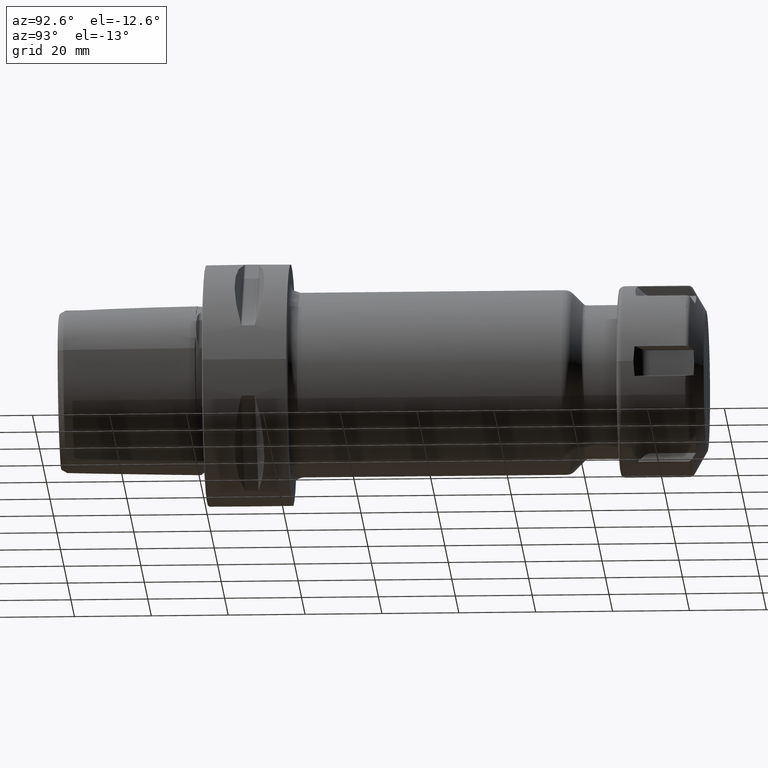
[diagram: clean part render]
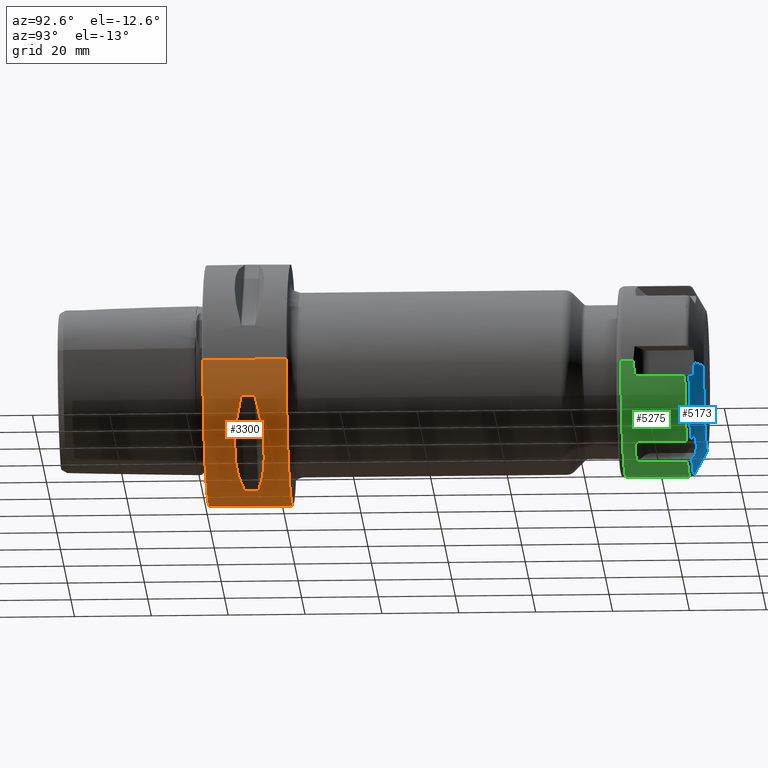
[diagram: same view with three faces highlighted in distinct colors, each labeled with its STEP entity id]
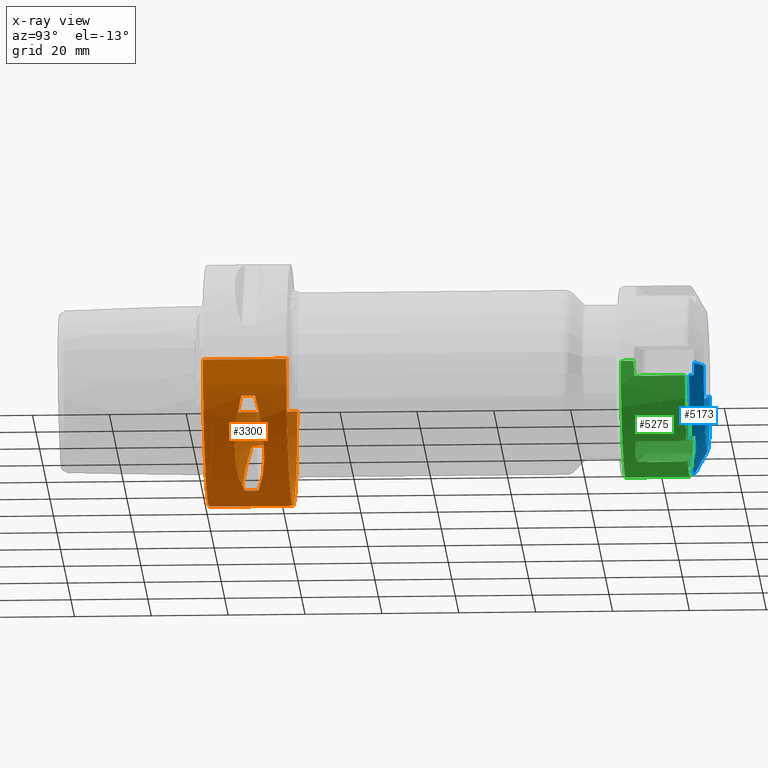
[diagram: x-ray of the same camera — body ghosted, the three highlighted faces saturated]
A machine part, auxiliary view with three faces highlighted in distinct colors.
The next image is the same camera in x-ray (body ghosted, the three faces saturated) — at least one of them is partly hidden behind the body in this view.
Their STEP definitions:

[orange] entity #3300 — the highlighted cylindrical surface (partial cylindrical patch) has radius 31.5 mm, axis along (0, -1, 0).
#1205=DIRECTION('',(0.E0,-1.E0,0.E0));
#1206=VECTOR('',#1205,2.922649730810E0);
#1207=CARTESIAN_POINT('',(-3.008059276032E1,1.346132486541E1,
-9.349221314525E0));
#1208=LINE('',#1207,#1206);
#1209=CARTESIAN_POINT('',(-2.991395484647E1,1.389433756730E1,
-9.869412618966E0));
#1210=CARTESIAN_POINT('',(-2.908518363459E1,1.458150705601E1,
-1.238139844501E1));
#1211=CARTESIAN_POINT('',(-2.691325004580E1,1.553584740593E1,
-1.689097893205E1));
#1212=CARTESIAN_POINT('',(-2.245973816660E1,1.599114523220E1,
-2.245973816660E1));
#1213=CARTESIAN_POINT('',(-1.689097893205E1,1.553584740593E1,
-2.691325004580E1));
#1214=CARTESIAN_POINT('',(-1.238139844501E1,1.458150705601E1,
-2.908518363459E1));
#1215=CARTESIAN_POINT('',(-9.869412618966E0,1.389433756730E1,
-2.991395484647E1));
#1217=DIRECTION('',(0.E0,-1.E0,0.E0));
#1218=VECTOR('',#1217,2.922649730810E0);
#1219=CARTESIAN_POINT('',(-9.349221314525E0,1.346132486541E1,
-3.008059276032E1));
#1220=LINE('',#1219,#1218);
#1221=CARTESIAN_POINT('',(-2.991395484647E1,1.010566243270E1,
-9.869412618966E0));
#1222=CARTESIAN_POINT('',(-2.908518363459E1,9.418492943988E0,
-1.238139844501E1));
#1223=CARTESIAN_POINT('',(-2.691325004580E1,8.464152594070E0,
-1.689097893205E1));
#1224=CARTESIAN_POINT('',(-2.245973816660E1,8.008854767798E0,
-2.245973816660E1));
#1225=CARTESIAN_POINT('',(-1.689097893205E1,8.464152594070E0,
-2.691325004580E1));
#1226=CARTESIAN_POINT('',(-1.238139844501E1,9.418492943988E0,
-2.908518363459E1));
#1227=CARTESIAN_POINT('',(-9.869412618966E0,1.010566243270E1,
-2.991395484647E1));
#1229=CARTESIAN_POINT('',(9.869412618966E0,1.389433756730E1,-2.991395484647E1));
#1230=CARTESIAN_POINT('',(1.238139844501E1,1.458150705601E1,-2.908518363459E1));
#1231=CARTESIAN_POINT('',(1.689097893205E1,1.553584740593E1,-2.691325004580E1));
#1232=CARTESIAN_POINT('',(2.245973816660E1,1.599114523220E1,-2.245973816660E1));
#1233=CARTESIAN_POINT('',(2.691325004580E1,1.553584740593E1,-1.689097893205E1));
#1234=CARTESIAN_POINT('',(2.908518363459E1,1.458150705601E1,-1.238139844501E1));
#1235=CARTESIAN_POINT('',(2.991395484647E1,1.389433756730E1,-9.869412618966E0));
#1237=DIRECTION('',(0.E0,-1.E0,0.E0));
#1238=VECTOR('',#1237,2.922649730810E0);
#1239=CARTESIAN_POINT('',(3.008059276032E1,1.346132486541E1,-9.349221314525E0));
#1240=LINE('',#1239,#1238);
#1241=CARTESIAN_POINT('',(2.991395484647E1,1.010566243270E1,-9.869412618966E0));
#1242=CARTESIAN_POINT('',(2.908518363459E1,9.418492943988E0,-1.238139844501E1));
#1243=CARTESIAN_POINT('',(2.691325004580E1,8.464152594070E0,-1.689097893205E1));
#1244=CARTESIAN_POINT('',(2.245973816660E1,8.008854767798E0,-2.245973816660E1));
#1245=CARTESIAN_POINT('',(1.689097893205E1,8.464152594070E0,-2.691325004580E1));
#1246=CARTESIAN_POINT('',(1.238139844501E1,9.418492943988E0,-2.908518363459E1));
#1247=CARTESIAN_POINT('',(9.869412618966E0,1.010566243270E1,-2.991395484647E1));
#1249=DIRECTION('',(0.E0,-1.E0,0.E0));
#1250=VECTOR('',#1249,2.922649730810E0);
#1251=CARTESIAN_POINT('',(9.349221314525E0,1.346132486541E1,-3.008059276032E1));
#1252=LINE('',#1251,#1250);
#1253=CARTESIAN_POINT('',(0.E0,3.000029778999E-1,0.E0));
#1254=DIRECTION('',(0.E0,-1.E0,0.E0));
#1255=DIRECTION('',(-1.E0,0.E0,0.E0));
#1256=AXIS2_PLACEMENT_3D('',#1253,#1254,#1255);
#1258=CARTESIAN_POINT('',(0.E0,2.2E1,0.E0));
#1259=DIRECTION('',(0.E0,-1.E0,0.E0));
#1260=DIRECTION('',(-1.E0,0.E0,0.E0));
#1261=AXIS2_PLACEMENT_3D('',#1258,#1259,#1260);
#1271=CARTESIAN_POINT('',(-9.349221314525E0,1.346132486541E1,
-3.008059276032E1));
#1272=CARTESIAN_POINT('',(-9.349221314525E0,1.349504795022E1,
-3.008059276032E1));
#1273=CARTESIAN_POINT('',(-9.362833969856E0,1.356093160788E1,
-3.007636824994E1));
#1274=CARTESIAN_POINT('',(-9.423024234347E0,1.365492587026E1,
-3.005758723646E1));
#1275=CARTESIAN_POINT('',(-9.505994515085E0,1.373070359192E1,
-3.003146987333E1));
#1276=CARTESIAN_POINT('',(-9.608339142194E0,1.379587241420E1,
-2.999890758448E1));
#1277=CARTESIAN_POINT('',(-9.730187158805E0,1.385140119697E1,
-2.995963363012E1));
#1278=CARTESIAN_POINT('',(-9.821338983855E0,1.388118672269E1,
-2.992981562260E1));
#1279=CARTESIAN_POINT('',(-9.869412618966E0,1.389433756730E1,
-2.991395484647E1));
#1281=CARTESIAN_POINT('',(-2.991395484647E1,1.389433756730E1,
-9.869412618966E0));
#1282=CARTESIAN_POINT('',(-2.992980347358E1,1.388119679596E1,
-9.821375807244E0));
#1283=CARTESIAN_POINT('',(-2.995963527303E1,1.385138534746E1,
-9.730181193235E0));
#1284=CARTESIAN_POINT('',(-2.999887968792E1,1.379596091020E1,
-9.608429051546E0));
#1285=CARTESIAN_POINT('',(-3.003182263275E1,1.372995736088E1,
-9.504883008252E0));
#1286=CARTESIAN_POINT('',(-3.005789814587E1,1.365373485983E1,
-9.422030217008E0));
#1287=CARTESIAN_POINT('',(-3.007643801323E1,1.356016710741E1,
-9.362608905906E0));
#1288=CARTESIAN_POINT('',(-3.008059276032E1,1.349474624232E1,
-9.349221314525E0));
#1289=CARTESIAN_POINT('',(-3.008059276032E1,1.346132486541E1,
-9.349221314525E0));
#1295=CARTESIAN_POINT('',(-9.869412618966E0,1.010566243270E1,
-2.991395484647E1));
#1296=CARTESIAN_POINT('',(-9.821308210859E0,1.011882169546E1,
-2.992982577543E1));
#1297=CARTESIAN_POINT('',(-9.729888141623E0,1.014869745425E1,
-2.995973108805E1));
#1298=CARTESIAN_POINT('',(-9.607745799635E0,1.020442300938E1,
-2.999909899342E1));
#1299=CARTESIAN_POINT('',(-9.503246659022E0,1.027093824207E1,
-3.003234338951E1));
#1300=CARTESIAN_POINT('',(-9.417809222093E0,1.035109620257E1,
-3.005922060641E1));
#1301=CARTESIAN_POINT('',(-9.361901171300E0,1.044267116295E1,
-3.007665631953E1));
#1302=CARTESIAN_POINT('',(-9.349221314525E0,1.050643820004E1,
-3.008059276032E1));
#1303=CARTESIAN_POINT('',(-9.349221314525E0,1.053867513459E1,
-3.008059276032E1));
#1305=CARTESIAN_POINT('',(-3.008059276032E1,1.053867513459E1,
-9.349221314525E0));
#1306=CARTESIAN_POINT('',(-3.008059276032E1,1.050654578135E1,
-9.349221314525E0));
#1307=CARTESIAN_POINT('',(-3.007668038044E1,1.044299847425E1,
-9.361823603568E0));
#1308=CARTESIAN_POINT('',(-3.005938846886E1,1.035182163747E1,
-9.417271451345E0));
#1309=CARTESIAN_POINT('',(-3.003270270663E1,1.027180209197E1,
-9.502110395747E0));
#1310=CARTESIAN_POINT('',(-2.999942275227E1,1.020495249529E1,
-9.606734803034E0));
#1311=CARTESIAN_POINT('',(-2.996007806365E1,1.014909337873E1,
-9.728821222096E0));
#1312=CARTESIAN_POINT('',(-2.992996736064E1,1.011893908978E1,
-9.820879069471E0));
#1313=CARTESIAN_POINT('',(-2.991395484647E1,1.010566243270E1,
-9.869412618966E0));
#1323=CARTESIAN_POINT('',(3.008059276032E1,1.346132486541E1,-9.349221314525E0));
#1324=CARTESIAN_POINT('',(3.008059276032E1,1.349469574652E1,-9.349221314525E0));
#1325=CARTESIAN_POINT('',(3.007644946554E1,1.356004198491E1,-9.362571960523E0));
#1326=CARTESIAN_POINT('',(3.005794801612E1,1.365354543677E1,-9.421870780902E0));
#1327=CARTESIAN_POINT('',(3.003186978023E1,1.372986453349E1,-9.504734744835E0));
#1328=CARTESIAN_POINT('',(2.999885204860E1,1.379601190466E1,-9.608515690181E0));
#1329=CARTESIAN_POINT('',(2.995963612130E1,1.385137935819E1,-9.730178159226E0));
#1330=CARTESIAN_POINT('',(2.992980233681E1,1.388119773850E1,-9.821379252757E0));
#1331=CARTESIAN_POINT('',(2.991395484647E1,1.389433756730E1,-9.869412618966E0));
#1333=CARTESIAN_POINT('',(9.869412618966E0,1.389433756730E1,-2.991395484647E1));
#1334=CARTESIAN_POINT('',(9.821338983855E0,1.388118672269E1,-2.992981562260E1));
#1335=CARTESIAN_POINT('',(9.730187158805E0,1.385140119697E1,-2.995963363012E1));
#1336=CARTESIAN_POINT('',(9.608339142194E0,1.379587241420E1,-2.999890758448E1));
#1337=CARTESIAN_POINT('',(9.505994515085E0,1.373070359192E1,-3.003146987333E1));
#1338=CARTESIAN_POINT('',(9.423024234347E0,1.365492587026E1,-3.005758723646E1));
#1339=CARTESIAN_POINT('',(9.362833969856E0,1.356093160788E1,-3.007636824994E1));
#1340=CARTESIAN_POINT('',(9.349221314525E0,1.349504795022E1,-3.008059276032E1));
#1341=CARTESIAN_POINT('',(9.349221314525E0,1.346132486541E1,-3.008059276032E1));
#1351=CARTESIAN_POINT('',(2.991395484647E1,1.010566243270E1,-9.869412618966E0));
#1352=CARTESIAN_POINT('',(2.992996944167E1,1.011894081525E1,-9.820872761913E0));
#1353=CARTESIAN_POINT('',(2.996008718581E1,1.014910317937E1,-9.728793285311E0));
#1354=CARTESIAN_POINT('',(2.999944598771E1,1.020498532174E1,-9.606662609526E0));
#1355=CARTESIAN_POINT('',(3.003275283675E1,1.027191829327E1,-9.501952000490E0));
#1356=CARTESIAN_POINT('',(3.005941487736E1,1.035193638725E1,-9.417186844685E0));
#1357=CARTESIAN_POINT('',(3.007668216134E1,1.044303610977E1,-9.361817836042E0));
#1358=CARTESIAN_POINT('',(3.008059276032E1,1.050655728651E1,-9.349221314525E0));
#1359=CARTESIAN_POINT('',(3.008059276032E1,1.053867513459E1,-9.349221314525E0));
#1361=CARTESIAN_POINT('',(9.349221314525E0,1.053867513459E1,-3.008059276032E1));
#1362=CARTESIAN_POINT('',(9.349221314525E0,1.050643820004E1,-3.008059276032E1));
#1363=CARTESIAN_POINT('',(9.361901171300E0,1.044267116295E1,-3.007665631953E1));
#1364=CARTESIAN_POINT('',(9.417809222093E0,1.035109620257E1,-3.005922060641E1));
#1365=CARTESIAN_POINT('',(9.503246659022E0,1.027093824207E1,-3.003234338951E1));
#1366=CARTESIAN_POINT('',(9.607745799635E0,1.020442300938E1,-2.999909899342E1));
#1367=CARTESIAN_POINT('',(9.729888141623E0,1.014869745425E1,-2.995973108805E1));
#1368=CARTESIAN_POINT('',(9.821308210859E0,1.011882169546E1,-2.992982577543E1));
#1369=CARTESIAN_POINT('',(9.869412618966E0,1.010566243270E1,-2.991395484647E1));
#1428=DIRECTION('',(4.354476440736E-8,-1.E0,-1.756462563612E-10));
#1429=VECTOR('',#1428,2.169999905527E1);
#1430=CARTESIAN_POINT('',(-3.15E1,2.2E1,0.E0));
#1431=LINE('',#1430,#1429);
#1437=DIRECTION('',(-4.354476407993E-8,-1.E0,1.756460043861E-10));
#1438=VECTOR('',#1437,2.169999905527E1);
#1439=CARTESIAN_POINT('',(3.15E1,2.2E1,0.E0));
#1440=LINE('',#1439,#1438);
#1882=CARTESIAN_POINT('',(-3.15E1,2.2E1,0.E0));
#1883=CARTESIAN_POINT('',(3.15E1,2.2E1,0.E0));
#1884=VERTEX_POINT('',#1882);
#1885=VERTEX_POINT('',#1883);
#1890=CARTESIAN_POINT('',(3.15E1,3.000029778999E-1,0.E0));
#1891=CARTESIAN_POINT('',(-3.15E1,3.000029778999E-1,0.E0));
#1892=VERTEX_POINT('',#1890);
#1893=VERTEX_POINT('',#1891);
#1922=CARTESIAN_POINT('',(-9.349221314525E0,1.346132486541E1,
-3.008059276032E1));
#1923=CARTESIAN_POINT('',(-3.008059276032E1,1.346132486541E1,
-9.349221314525E0));
#1924=VERTEX_POINT('',#1922);
#1925=VERTEX_POINT('',#1923);
#1926=CARTESIAN_POINT('',(-9.869412618966E0,1.389433756730E1,
-2.991395484647E1));
#1927=CARTESIAN_POINT('',(-2.991395484647E1,1.389433756730E1,
-9.869412618966E0));
#1928=VERTEX_POINT('',#1926);
#1929=VERTEX_POINT('',#1927);
#1930=CARTESIAN_POINT('',(-9.869412618966E0,1.010566243270E1,
-2.991395484647E1));
#1931=CARTESIAN_POINT('',(-2.991395484647E1,1.010566243270E1,
-9.869412618966E0));
#1932=VERTEX_POINT('',#1930);
#1933=VERTEX_POINT('',#1931);
#1934=CARTESIAN_POINT('',(-9.349221314525E0,1.053867513459E1,
-3.008059276032E1));
#1935=CARTESIAN_POINT('',(-3.008059276032E1,1.053867513459E1,
-9.349221314525E0));
#1936=VERTEX_POINT('',#1934);
#1937=VERTEX_POINT('',#1935);
#1938=CARTESIAN_POINT('',(3.008059276032E1,1.346132486541E1,-9.349221314525E0));
#1939=CARTESIAN_POINT('',(9.349221314525E0,1.346132486541E1,-3.008059276032E1));
#1940=VERTEX_POINT('',#1938);
#1941=VERTEX_POINT('',#1939);
#1942=CARTESIAN_POINT('',(2.991395484647E1,1.389433756730E1,-9.869412618966E0));
#1943=CARTESIAN_POINT('',(9.869412618966E0,1.389433756730E1,-2.991395484647E1));
#1944=VERTEX_POINT('',#1942);
#1945=VERTEX_POINT('',#1943);
#1946=CARTESIAN_POINT('',(2.991395484647E1,1.010566243270E1,-9.869412618966E0));
#1947=CARTESIAN_POINT('',(9.869412618966E0,1.010566243270E1,-2.991395484647E1));
#1948=VERTEX_POINT('',#1946);
#1949=VERTEX_POINT('',#1947);
#1950=CARTESIAN_POINT('',(3.008059276032E1,1.053867513459E1,-9.349221314525E0));
#1951=CARTESIAN_POINT('',(9.349221314525E0,1.053867513459E1,-3.008059276032E1));
#1952=VERTEX_POINT('',#1950);
#1953=VERTEX_POINT('',#1951);
#3250=CARTESIAN_POINT('',(0.E0,2.311E1,0.E0));
#3251=DIRECTION('',(0.E0,-1.E0,0.E0));
#3252=DIRECTION('',(-1.E0,0.E0,0.E0));
#3253=AXIS2_PLACEMENT_3D('',#3250,#3251,#3252);
#3254=CYLINDRICAL_SURFACE('',#3253,3.15E1);
#3255=ORIENTED_EDGE('',*,*,#3244,.T.);
#3257=ORIENTED_EDGE('',*,*,#3256,.F.);
#3259=ORIENTED_EDGE('',*,*,#3258,.F.);
#3261=ORIENTED_EDGE('',*,*,#3260,.T.);
#3262=EDGE_LOOP('',(#3255,#3257,#3259,#3261));
#3263=FACE_OUTER_BOUND('',#3262,.F.);
#3265=ORIENTED_EDGE('',*,*,#3264,.F.);
#3267=ORIENTED_EDGE('',*,*,#3266,.F.);
#3269=ORIENTED_EDGE('',*,*,#3268,.T.);
#3271=ORIENTED_EDGE('',*,*,#3270,.F.);
#3273=ORIENTED_EDGE('',*,*,#3272,.T.);
#3275=ORIENTED_EDGE('',*,*,#3274,.F.);
#3277=ORIENTED_EDGE('',*,*,#3276,.F.);
#3279=ORIENTED_EDGE('',*,*,#3278,.F.);
#3280=EDGE_LOOP('',(#3265,#3267,#3269,#3271,#3273,#3275,#3277,#3279));
#3281=FACE_BOUND('',#3280,.F.);
#3283=ORIENTED_EDGE('',*,*,#3282,.T.);
#3285=ORIENTED_EDGE('',*,*,#3284,.F.);
#3287=ORIENTED_EDGE('',*,*,#3286,.T.);
#3289=ORIENTED_EDGE('',*,*,#3288,.F.);
#3291=ORIENTED_EDGE('',*,*,#3290,.T.);
#3293=ORIENTED_EDGE('',*,*,#3292,.F.);
#3295=ORIENTED_EDGE('',*,*,#3294,.F.);
#3297=ORIENTED_EDGE('',*,*,#3296,.F.);
#3298=EDGE_LOOP('',(#3283,#3285,#3287,#3289,#3291,#3293,#3295,#3297));
#3299=FACE_BOUND('',#3298,.F.);
#3300=ADVANCED_FACE('',(#3263,#3281,#3299),#3254,.T.);
#1216=B_SPLINE_CURVE_WITH_KNOTS('',3,(#1209,#1210,#1211,#1212,#1213,#1214,
#1215),.UNSPECIFIED.,.F.,.F.,(4,1,1,1,4),(0.E0,2.5E-1,5.E-1,7.5E-1,1.E0),
.UNSPECIFIED.);
#1228=B_SPLINE_CURVE_WITH_KNOTS('',3,(#1221,#1222,#1223,#1224,#1225,#1226,
#1227),.UNSPECIFIED.,.F.,.F.,(4,1,1,1,4),(0.E0,2.5E-1,5.E-1,7.5E-1,1.E0),
.UNSPECIFIED.);
#1236=B_SPLINE_CURVE_WITH_KNOTS('',3,(#1229,#1230,#1231,#1232,#1233,#1234,
#1235),.UNSPECIFIED.,.F.,.F.,(4,1,1,1,4),(0.E0,2.5E-1,5.E-1,7.5E-1,1.E0),
.UNSPECIFIED.);
#1248=B_SPLINE_CURVE_WITH_KNOTS('',3,(#1241,#1242,#1243,#1244,#1245,#1246,
#1247),.UNSPECIFIED.,.F.,.F.,(4,1,1,1,4),(0.E0,2.5E-1,5.E-1,7.5E-1,1.E0),
.UNSPECIFIED.);
#1257=CIRCLE('',#1256,3.15E1);
#1262=CIRCLE('',#1261,3.15E1);
#1280=B_SPLINE_CURVE_WITH_KNOTS('',3,(#1271,#1272,#1273,#1274,#1275,#1276,#1277,
#1278,#1279),.UNSPECIFIED.,.F.,.F.,(4,1,1,1,1,1,4),(0.E0,1.666666666667E-1,
3.333333333333E-1,5.E-1,6.666666666667E-1,8.333333333333E-1,1.E0),
.UNSPECIFIED.);
#1290=B_SPLINE_CURVE_WITH_KNOTS('',3,(#1281,#1282,#1283,#1284,#1285,#1286,#1287,
#1288,#1289),.UNSPECIFIED.,.F.,.F.,(4,1,1,1,1,1,4),(0.E0,1.666666666667E-1,
3.333333333333E-1,5.E-1,6.666666666667E-1,8.333333333333E-1,1.E0),
.UNSPECIFIED.);
#1304=B_SPLINE_CURVE_WITH_KNOTS('',3,(#1295,#1296,#1297,#1298,#1299,#1300,#1301,
#1302,#1303),.UNSPECIFIED.,.F.,.F.,(4,1,1,1,1,1,4),(0.E0,1.666666666667E-1,
3.333333333333E-1,5.E-1,6.666666666667E-1,8.333333333333E-1,1.E0),
.UNSPECIFIED.);
#1314=B_SPLINE_CURVE_WITH_KNOTS('',3,(#1305,#1306,#1307,#1308,#1309,#1310,#1311,
#1312,#1313),.UNSPECIFIED.,.F.,.F.,(4,1,1,1,1,1,4),(0.E0,1.666666666667E-1,
3.333333333333E-1,5.E-1,6.666666666667E-1,8.333333333333E-1,1.E0),
.UNSPECIFIED.);
#1332=B_SPLINE_CURVE_WITH_KNOTS('',3,(#1323,#1324,#1325,#1326,#1327,#1328,#1329,
#1330,#1331),.UNSPECIFIED.,.F.,.F.,(4,1,1,1,1,1,4),(0.E0,1.666666666667E-1,
3.333333333333E-1,5.E-1,6.666666666667E-1,8.333333333333E-1,1.E0),
.UNSPECIFIED.);
#1342=B_SPLINE_CURVE_WITH_KNOTS('',3,(#1333,#1334,#1335,#1336,#1337,#1338,#1339,
#1340,#1341),.UNSPECIFIED.,.F.,.F.,(4,1,1,1,1,1,4),(0.E0,1.666666666667E-1,
3.333333333333E-1,5.E-1,6.666666666667E-1,8.333333333333E-1,1.E0),
.UNSPECIFIED.);
#1360=B_SPLINE_CURVE_WITH_KNOTS('',3,(#1351,#1352,#1353,#1354,#1355,#1356,#1357,
#1358,#1359),.UNSPECIFIED.,.F.,.F.,(4,1,1,1,1,1,4),(0.E0,1.666666666667E-1,
3.333333333333E-1,5.E-1,6.666666666667E-1,8.333333333333E-1,1.E0),
.UNSPECIFIED.);
#1370=B_SPLINE_CURVE_WITH_KNOTS('',3,(#1361,#1362,#1363,#1364,#1365,#1366,#1367,
#1368,#1369),.UNSPECIFIED.,.F.,.F.,(4,1,1,1,1,1,4),(0.E0,1.666666666667E-1,
3.333333333333E-1,5.E-1,6.666666666667E-1,8.333333333333E-1,1.E0),
.UNSPECIFIED.);
#3244=EDGE_CURVE('',#1893,#1892,#1257,.T.);
#3256=EDGE_CURVE('',#1885,#1892,#1440,.T.);
#3258=EDGE_CURVE('',#1884,#1885,#1262,.T.);
#3260=EDGE_CURVE('',#1884,#1893,#1431,.T.);
#3264=EDGE_CURVE('',#1925,#1937,#1208,.T.);
#3266=EDGE_CURVE('',#1929,#1925,#1290,.T.);
#3268=EDGE_CURVE('',#1929,#1928,#1216,.T.);
#3270=EDGE_CURVE('',#1924,#1928,#1280,.T.);
#3272=EDGE_CURVE('',#1924,#1936,#1220,.T.);
#3274=EDGE_CURVE('',#1932,#1936,#1304,.T.);
#3276=EDGE_CURVE('',#1933,#1932,#1228,.T.);
#3278=EDGE_CURVE('',#1937,#1933,#1314,.T.);
#3282=EDGE_CURVE('',#1945,#1944,#1236,.T.);
#3284=EDGE_CURVE('',#1940,#1944,#1332,.T.);
#3286=EDGE_CURVE('',#1940,#1952,#1240,.T.);
#3288=EDGE_CURVE('',#1948,#1952,#1360,.T.);
#3290=EDGE_CURVE('',#1948,#1949,#1248,.T.);
#3292=EDGE_CURVE('',#1953,#1949,#1370,.T.);
#3294=EDGE_CURVE('',#1941,#1953,#1252,.T.);
#3296=EDGE_CURVE('',#1945,#1941,#1342,.T.);

[blue] entity #5173 — the highlighted conical surface has half-angle 60 deg.
#4319=CARTESIAN_POINT('',(2.007435737753E1,1.400118510268E1,-1.755076396401E1));
#4320=CARTESIAN_POINT('',(1.989202963548E1,1.422154361045E1,-1.777895187872E1));
#4321=CARTESIAN_POINT('',(1.952459463873E1,1.466553630405E1,-1.823871977204E1));
#4322=CARTESIAN_POINT('',(1.915160861205E1,1.511608354504E1,-1.870527509788E1));
#4323=CARTESIAN_POINT('',(1.896372960121E1,1.534299650585E1,-1.894025034738E1));
#4325=CARTESIAN_POINT('',(2.007435737753E1,8.198814897322E0,-2.090076396401E1));
#4326=CARTESIAN_POINT('',(2.013850261850E1,8.843656557694E0,-2.052846445781E1));
#4327=CARTESIAN_POINT('',(2.022485531472E1,1.013317723897E1,-1.978395934535E1));
#4328=CARTESIAN_POINT('',(2.022485360844E1,1.206686210227E1,-1.866754586900E1));
#4329=CARTESIAN_POINT('',(2.013850094754E1,1.335636024026E1,-1.792305377191E1));
#4330=CARTESIAN_POINT('',(2.007435737753E1,1.400118510268E1,-1.755076396401E1));
#4332=CARTESIAN_POINT('',(1.896372960121E1,8.731239701949E0,-2.275754991793E1));
#4333=CARTESIAN_POINT('',(1.915154885340E1,8.641230285410E0,-2.244364977861E1));
#4334=CARTESIAN_POINT('',(1.952447514954E1,8.462483784300E0,-2.182028664885E1));
#4335=CARTESIAN_POINT('',(1.989196990744E1,8.286280817645E0,-2.120579387789E1));
#4336=CARTESIAN_POINT('',(2.007435737753E1,8.198814897322E0,-2.090076396401E1));
#4338=CARTESIAN_POINT('',(1.896372960121E1,0.E0,0.E0));
#4339=DIRECTION('',(-1.E0,0.E0,0.E0));
#4340=DIRECTION('',(0.E0,3.582047057210E-1,-9.336430735561E-1));
#4341=AXIS2_PLACEMENT_3D('',#4338,#4339,#4340);
#4343=CARTESIAN_POINT('',(2.007435737753E1,-8.198814897322E0,
-2.090076396401E1));
#4344=CARTESIAN_POINT('',(1.989202963548E1,-8.286252174404E0,
-2.120569398704E1));
#4345=CARTESIAN_POINT('',(1.952459463873E1,-8.462426503065E0,
-2.182008688545E1));
#4346=CARTESIAN_POINT('',(1.915160861205E1,-8.641201647020E0,
-2.244354990467E1));
#4347=CARTESIAN_POINT('',(1.896372960121E1,-8.731239701949E0,
-2.275754991793E1));
#4349=CARTESIAN_POINT('',(2.007435737753E1,-1.400118510268E1,
-1.755076396401E1));
#4350=CARTESIAN_POINT('',(2.013850261850E1,-1.335634344231E1,
-1.792306347021E1));
#4351=CARTESIAN_POINT('',(2.022485531472E1,-1.206682276103E1,
-1.866756858268E1));
#4352=CARTESIAN_POINT('',(2.022485360844E1,-1.013313789773E1,
-1.978398205903E1));
#4353=CARTESIAN_POINT('',(2.013850094754E1,-8.843639759743E0,
-2.052847415612E1));
#4354=CARTESIAN_POINT('',(2.007435737753E1,-8.198814897322E0,
-2.090076396401E1));
#4356=CARTESIAN_POINT('',(1.896372960121E1,-1.534299650585E1,
-1.894025034738E1));
#4357=CARTESIAN_POINT('',(1.915154885340E1,-1.511615571921E1,
-1.870534983642E1));
#4358=CARTESIAN_POINT('',(1.952447514954E1,-1.466568066362E1,
-1.823886926074E1));
#4359=CARTESIAN_POINT('',(1.989196990744E1,-1.422161579685E1,
-1.777902662992E1));
#4360=CARTESIAN_POINT('',(2.007435737753E1,-1.400118510268E1,
-1.755076396401E1));
#4362=CARTESIAN_POINT('',(1.896372960121E1,0.E0,0.E0));
#4363=DIRECTION('',(-1.E0,0.E0,0.E0));
#4364=DIRECTION('',(0.E0,-6.294562669065E-1,-7.770359116876E-1));
#4365=AXIS2_PLACEMENT_3D('',#4362,#4363,#4364);
#4367=CARTESIAN_POINT('',(2.007435737753E1,-2.22E1,-3.35E0));
#4368=CARTESIAN_POINT('',(1.989202963548E1,-2.250779578486E1,
-3.426742108322E0));
#4369=CARTESIAN_POINT('',(1.952459463873E1,-2.312796280711E1,
-3.581367113410E0));
#4370=CARTESIAN_POINT('',(1.915160861205E1,-2.375728519206E1,
-3.738274806794E0));
#4371=CARTESIAN_POINT('',(1.896372960121E1,-2.407423620780E1,
-3.817299570546E0));
#4373=CARTESIAN_POINT('',(2.021946643670E1,-2.22E1,-4.505137681520E-14));
#4374=CARTESIAN_POINT('',(2.021946643670E1,-2.22E1,-3.723412104007E-1));
#4375=CARTESIAN_POINT('',(2.020864224929E1,-2.22E1,-1.116942255784E0));
#4376=CARTESIAN_POINT('',(2.016008769471E1,-2.22E1,-2.233495806650E0));
#4377=CARTESIAN_POINT('',(2.010641792581E1,-2.22E1,-2.977840628173E0));
#4378=CARTESIAN_POINT('',(2.007435737753E1,-2.22E1,-3.35E0));
#4380=DIRECTION('',(-5.E-1,-8.660254037844E-1,0.E0));
#4381=VECTOR('',#4380,4.561067126598E0);
#4382=CARTESIAN_POINT('',(2.25E1,-1.825E1,0.E0));
#4383=LINE('',#4382,#4381);
#4384=CARTESIAN_POINT('',(2.25E1,0.E0,0.E0));
#4385=DIRECTION('',(-1.E0,0.E0,0.E0));
#4386=DIRECTION('',(0.E0,1.E0,0.E0));
#4387=AXIS2_PLACEMENT_3D('',#4384,#4385,#4386);
#4389=DIRECTION('',(-5.E-1,8.660254037844E-1,0.E0));
#4390=VECTOR('',#4389,4.561067126598E0);
#4391=CARTESIAN_POINT('',(2.25E1,1.825E1,0.E0));
#4392=LINE('',#4391,#4390);
#4393=CARTESIAN_POINT('',(2.007435737753E1,2.22E1,-3.35E0));
#4394=CARTESIAN_POINT('',(2.010642291935E1,2.22E1,-2.977782663007E0));
#4395=CARTESIAN_POINT('',(2.016009585532E1,2.22E1,-2.233360618265E0));
#4396=CARTESIAN_POINT('',(2.020864465134E1,2.22E1,-1.116836975823E0));
#4397=CARTESIAN_POINT('',(2.021946643670E1,2.22E1,-3.722962341462E-1));
#4398=CARTESIAN_POINT('',(2.021946643670E1,2.22E1,0.E0));
#4400=CARTESIAN_POINT('',(1.896372960121E1,2.407423620780E1,-3.817299570546E0));
#4401=CARTESIAN_POINT('',(1.915154885340E1,2.375738600462E1,-3.738299942188E0));
#4402=CARTESIAN_POINT('',(1.952447514954E1,2.312816444792E1,-3.581417388109E0));
#4403=CARTESIAN_POINT('',(1.989196990744E1,2.250789661449E1,-3.426767247974E0));
#4404=CARTESIAN_POINT('',(2.007435737753E1,2.22E1,-3.35E0));
#4406=CARTESIAN_POINT('',(1.896372960121E1,0.E0,0.E0));
#4407=DIRECTION('',(-1.E0,0.E0,0.E0));
#4408=DIRECTION('',(0.E0,9.876609726275E-1,-1.566071618686E-1));
#4409=AXIS2_PLACEMENT_3D('',#4406,#4407,#4408);
#4678=CARTESIAN_POINT('',(2.021946643670E1,-2.22E1,-4.505137681520E-14));
#4745=CARTESIAN_POINT('',(2.021946643670E1,2.22E1,0.E0));
#5015=CARTESIAN_POINT('',(2.25E1,1.825E1,0.E0));
#5016=CARTESIAN_POINT('',(2.25E1,-1.825E1,0.E0));
#5017=VERTEX_POINT('',#5015);
#5018=VERTEX_POINT('',#5016);
#5029=VERTEX_POINT('',#4745);
#5030=VERTEX_POINT('',#4393);
#5031=VERTEX_POINT('',#4400);
#5074=VERTEX_POINT('',#4678);
#5076=VERTEX_POINT('',#4367);
#5077=VERTEX_POINT('',#4371);
#5089=VERTEX_POINT('',#4343);
#5090=VERTEX_POINT('',#4347);
#5091=VERTEX_POINT('',#4349);
#5092=VERTEX_POINT('',#4356);
#5104=VERTEX_POINT('',#4319);
#5105=VERTEX_POINT('',#4323);
#5106=VERTEX_POINT('',#4325);
#5107=VERTEX_POINT('',#4332);
#5135=CARTESIAN_POINT('',(2.073186480061E1,0.E0,0.E0));
#5136=DIRECTION('',(-1.E0,0.E0,0.E0));
#5137=DIRECTION('',(0.E0,1.E0,0.E0));
#5138=AXIS2_PLACEMENT_3D('',#5135,#5136,#5137);
#5139=CONICAL_SURFACE('',#5138,2.13125E1,6.E1);
#5141=ORIENTED_EDGE('',*,*,#5140,.F.);
#5143=ORIENTED_EDGE('',*,*,#5142,.F.);
#5145=ORIENTED_EDGE('',*,*,#5144,.F.);
#5147=ORIENTED_EDGE('',*,*,#5146,.T.);
#5149=ORIENTED_EDGE('',*,*,#5148,.F.);
#5151=ORIENTED_EDGE('',*,*,#5150,.F.);
#5153=ORIENTED_EDGE('',*,*,#5152,.F.);
#5155=ORIENTED_EDGE('',*,*,#5154,.T.);
#5157=ORIENTED_EDGE('',*,*,#5156,.F.);
#5159=ORIENTED_EDGE('',*,*,#5158,.F.);
#5161=ORIENTED_EDGE('',*,*,#5160,.F.);
#5162=ORIENTED_EDGE('',*,*,#5128,.F.);
#5164=ORIENTED_EDGE('',*,*,#5163,.T.);
#5166=ORIENTED_EDGE('',*,*,#5165,.F.);
#5168=ORIENTED_EDGE('',*,*,#5167,.F.);
#5170=ORIENTED_EDGE('',*,*,#5169,.T.);
#5171=EDGE_LOOP('',(#5141,#5143,#5145,#5147,#5149,#5151,#5153,#5155,#5157,#5159,
#5161,#5162,#5164,#5166,#5168,#5170));
#5172=FACE_OUTER_BOUND('',#5171,.F.);
#5173=ADVANCED_FACE('',(#5172),#5139,.T.);
#4324=B_SPLINE_CURVE_WITH_KNOTS('',3,(#4319,#4320,#4321,#4322,#4323),
.UNSPECIFIED.,.F.,.F.,(4,1,4),(0.E0,5.E-1,1.E0),.UNSPECIFIED.);
#4331=B_SPLINE_CURVE_WITH_KNOTS('',3,(#4325,#4326,#4327,#4328,#4329,#4330),
.UNSPECIFIED.,.F.,.F.,(4,1,1,4),(0.E0,3.333333333333E-1,6.666666666667E-1,1.E0),
.UNSPECIFIED.);
#4337=B_SPLINE_CURVE_WITH_KNOTS('',3,(#4332,#4333,#4334,#4335,#4336),
.UNSPECIFIED.,.F.,.F.,(4,1,4),(0.E0,5.E-1,1.E0),.UNSPECIFIED.);
#4342=CIRCLE('',#4341,2.4375E1);
#4348=B_SPLINE_CURVE_WITH_KNOTS('',3,(#4343,#4344,#4345,#4346,#4347),
.UNSPECIFIED.,.F.,.F.,(4,1,4),(0.E0,5.E-1,1.E0),.UNSPECIFIED.);
#4355=B_SPLINE_CURVE_WITH_KNOTS('',3,(#4349,#4350,#4351,#4352,#4353,#4354),
.UNSPECIFIED.,.F.,.F.,(4,1,1,4),(0.E0,3.333333333333E-1,6.666666666667E-1,1.E0),
.UNSPECIFIED.);
#4361=B_SPLINE_CURVE_WITH_KNOTS('',3,(#4356,#4357,#4358,#4359,#4360),
.UNSPECIFIED.,.F.,.F.,(4,1,4),(0.E0,5.E-1,1.E0),.UNSPECIFIED.);
#4366=CIRCLE('',#4365,2.4375E1);
#4372=B_SPLINE_CURVE_WITH_KNOTS('',3,(#4367,#4368,#4369,#4370,#4371),
.UNSPECIFIED.,.F.,.F.,(4,1,4),(0.E0,5.E-1,1.E0),.UNSPECIFIED.);
#4379=B_SPLINE_CURVE_WITH_KNOTS('',3,(#4373,#4374,#4375,#4376,#4377,#4378),
.UNSPECIFIED.,.F.,.F.,(4,1,1,4),(0.E0,3.333333333333E-1,6.666666666667E-1,1.E0),
.UNSPECIFIED.);
#4388=CIRCLE('',#4387,1.825E1);
#4399=B_SPLINE_CURVE_WITH_KNOTS('',3,(#4393,#4394,#4395,#4396,#4397,#4398),
.UNSPECIFIED.,.F.,.F.,(4,1,1,4),(0.E0,3.333333333333E-1,6.666666666667E-1,1.E0),
.UNSPECIFIED.);
#4405=B_SPLINE_CURVE_WITH_KNOTS('',3,(#4400,#4401,#4402,#4403,#4404),
.UNSPECIFIED.,.F.,.F.,(4,1,4),(0.E0,5.E-1,1.E0),.UNSPECIFIED.);
#4410=CIRCLE('',#4409,2.4375E1);
#5128=EDGE_CURVE('',#5017,#5018,#4388,.T.);
#5140=EDGE_CURVE('',#5104,#5105,#4324,.T.);
#5142=EDGE_CURVE('',#5106,#5104,#4331,.T.);
#5144=EDGE_CURVE('',#5107,#5106,#4337,.T.);
#5146=EDGE_CURVE('',#5107,#5090,#4342,.T.);
#5148=EDGE_CURVE('',#5089,#5090,#4348,.T.);
#5150=EDGE_CURVE('',#5091,#5089,#4355,.T.);
#5152=EDGE_CURVE('',#5092,#5091,#4361,.T.);
#5154=EDGE_CURVE('',#5092,#5077,#4366,.T.);
#5156=EDGE_CURVE('',#5076,#5077,#4372,.T.);
#5158=EDGE_CURVE('',#5074,#5076,#4379,.T.);
#5160=EDGE_CURVE('',#5018,#5074,#4383,.T.);
#5163=EDGE_CURVE('',#5017,#5029,#4392,.T.);
#5165=EDGE_CURVE('',#5030,#5029,#4399,.T.);
#5167=EDGE_CURVE('',#5031,#5030,#4405,.T.);
#5169=EDGE_CURVE('',#5031,#5105,#4410,.T.);

[green] entity #5275 — the highlighted cylindrical surface (partial cylindrical patch) has radius 25 mm, axis along (0, 1, 0).
#4439=CARTESIAN_POINT('',(4.807079781803E0,8.904151986948E0,-2.336056671815E1));
#4440=CARTESIAN_POINT('',(4.381591242552E0,1.140843500467E1,-2.240603008909E1));
#4441=CARTESIAN_POINT('',(4.381591242552E0,1.369997375277E1,-2.108300957602E1));
#4442=CARTESIAN_POINT('',(4.807079781803E0,1.577876823125E1,-1.939150517893E1));
#4444=DIRECTION('',(1.E0,0.E0,0.E0));
#4445=VECTOR('',#4444,1.307411806468E1);
#4446=CARTESIAN_POINT('',(4.807079781803E0,1.577876823125E1,-1.939150517893E1));
#4447=LINE('',#4446,#4445);
#4448=CARTESIAN_POINT('',(1.788119784648E1,0.E0,0.E0));
#4449=DIRECTION('',(-1.E0,0.E0,0.E0));
#4450=DIRECTION('',(0.E0,9.873168087279E-1,-1.587624615689E-1));
#4451=AXIS2_PLACEMENT_3D('',#4448,#4449,#4450);
#4453=DIRECTION('',(1.E0,0.E0,0.E0));
#4454=VECTOR('',#4453,1.307411806468E1);
#4455=CARTESIAN_POINT('',(4.807079781803E0,2.468292021820E1,-3.969061539222E0));
#4456=LINE('',#4455,#4454);
#4457=CARTESIAN_POINT('',(4.807079781803E0,2.468292021820E1,-3.969061539222E0));
#4458=CARTESIAN_POINT('',(4.729701493378E0,2.476029850662E1,-3.487859093522E0));
#4459=CARTESIAN_POINT('',(4.609219197891E0,2.488166969100E1,-2.550817383639E0));
#4460=CARTESIAN_POINT('',(4.504536623461E0,2.498235226543E1,-1.228026509027E0));
#4461=CARTESIAN_POINT('',(4.5E0,2.499666666667E1,-4.003888699202E-1));
#4462=CARTESIAN_POINT('',(4.5E0,2.499666666667E1,1.417951640115E-14));
#4464=DIRECTION('',(-9.999994740307E-1,1.025640486187E-3,1.577133168835E-12));
#4465=VECTOR('',#4464,3.250001709401E0);
#4466=CARTESIAN_POINT('',(4.5E0,2.499666666667E1,1.417951640115E-14));
#4467=LINE('',#4466,#4465);
#4468=CARTESIAN_POINT('',(1.25E0,0.E0,0.E0));
#4469=DIRECTION('',(-1.E0,0.E0,0.E0));
#4470=DIRECTION('',(0.E0,1.E0,0.E0));
#4471=AXIS2_PLACEMENT_3D('',#4468,#4469,#4470);
#4473=DIRECTION('',(-9.999994740307E-1,-1.025640486184E-3,-1.578379367537E-12));
#4474=VECTOR('',#4473,3.250001709401E0);
#4475=CARTESIAN_POINT('',(4.5E0,-2.499666666667E1,-1.240051271650E-14));
#4476=LINE('',#4475,#4474);
#4477=CARTESIAN_POINT('',(4.5E0,-2.499666666667E1,-1.240051271650E-14));
#4478=CARTESIAN_POINT('',(4.5E0,-2.499666666667E1,-1.451714455632E-1));
#4479=CARTESIAN_POINT('',(4.487872521708E0,-2.499903346707E1,
-4.463428212676E-1));
#4480=CARTESIAN_POINT('',(4.506996588005E0,-2.498383245127E1,
-9.338081408938E-1));
#4481=CARTESIAN_POINT('',(4.530046438305E0,-2.495973141581E1,
-1.454059244478E0));
#4482=CARTESIAN_POINT('',(4.569007848129E0,-2.492105169613E1,
-2.013026454191E0));
#4483=CARTESIAN_POINT('',(4.624405857984E0,-2.486557811087E1,
-2.614252934544E0));
#4484=CARTESIAN_POINT('',(4.700654693787E0,-2.478934988654E1,
-3.262138709532E0));
#4485=CARTESIAN_POINT('',(4.768334245703E0,-2.472166575430E1,
-3.728109624791E0));
#4486=CARTESIAN_POINT('',(4.807079781803E0,-2.468292021820E1,
-3.969061539222E0));
#4488=DIRECTION('',(1.E0,0.E0,0.E0));
#4489=VECTOR('',#4488,1.307411806468E1);
#4490=CARTESIAN_POINT('',(4.807079781803E0,-2.468292021820E1,
-3.969061539222E0));
#4491=LINE('',#4490,#4489);
#4492=CARTESIAN_POINT('',(1.788119784648E1,0.E0,0.E0));
#4493=DIRECTION('',(-1.E0,0.E0,0.E0));
#4494=DIRECTION('',(0.E0,-6.311507292499E-1,-7.756602071573E-1));
#4495=AXIS2_PLACEMENT_3D('',#4492,#4493,#4494);
#4497=DIRECTION('',(1.E0,0.E0,0.E0));
#4498=VECTOR('',#4497,1.307411806468E1);
#4499=CARTESIAN_POINT('',(4.807079781803E0,-1.577876823125E1,
-1.939150517893E1));
#4500=LINE('',#4499,#4498);
#4501=CARTESIAN_POINT('',(4.807079781803E0,-1.577876823125E1,
-1.939150517893E1));
#4502=CARTESIAN_POINT('',(4.381591242552E0,-1.369997375277E1,
-2.108300957602E1));
#4503=CARTESIAN_POINT('',(4.381591242552E0,-1.140843500467E1,
-2.240603008909E1));
#4504=CARTESIAN_POINT('',(4.807079781803E0,-8.904151986948E0,
-2.336056671815E1));
#4506=DIRECTION('',(1.E0,0.E0,0.E0));
#4507=VECTOR('',#4506,1.307411806468E1);
#4508=CARTESIAN_POINT('',(4.807079781803E0,-8.904151986948E0,
-2.336056671815E1));
#4509=LINE('',#4508,#4507);
#4510=CARTESIAN_POINT('',(1.788119784648E1,0.E0,0.E0));
#4511=DIRECTION('',(-1.E0,0.E0,0.E0));
#4512=DIRECTION('',(0.E0,3.561660794779E-1,-9.344226687262E-1));
#4513=AXIS2_PLACEMENT_3D('',#4510,#4511,#4512);
#4515=DIRECTION('',(1.E0,0.E0,0.E0));
#4516=VECTOR('',#4515,1.307411806468E1);
#4517=CARTESIAN_POINT('',(4.807079781803E0,8.904151986948E0,-2.336056671815E1));
#4518=LINE('',#4517,#4516);
#4585=CARTESIAN_POINT('',(1.788119784648E1,-1.577876823125E1,
-1.939150517893E1));
#4605=CARTESIAN_POINT('',(1.788119784648E1,-2.468292021820E1,
-3.969061539222E0));
#4616=CARTESIAN_POINT('',(1.788119784648E1,1.577876823125E1,-1.939150517893E1));
#4618=CARTESIAN_POINT('',(1.788119784648E1,2.468292021820E1,-3.969061539222E0));
#4629=CARTESIAN_POINT('',(1.788119784648E1,8.904151986948E0,-2.336056671815E1));
#4649=CARTESIAN_POINT('',(1.788119784648E1,-8.904151986948E0,
-2.336056671815E1));
#5023=CARTESIAN_POINT('',(1.25E0,2.5E1,0.E0));
#5024=CARTESIAN_POINT('',(1.25E0,-2.5E1,0.E0));
#5025=VERTEX_POINT('',#5023);
#5026=VERTEX_POINT('',#5024);
#5033=VERTEX_POINT('',#4618);
#5036=CARTESIAN_POINT('',(4.807079781803E0,2.468292021820E1,-3.969061539222E0));
#5037=VERTEX_POINT('',#5036);
#5078=VERTEX_POINT('',#4605);
#5082=CARTESIAN_POINT('',(4.807079781803E0,-2.468292021820E1,
-3.969061539222E0));
#5083=VERTEX_POINT('',#5082);
#5093=VERTEX_POINT('',#4649);
#5094=VERTEX_POINT('',#4585);
#5095=CARTESIAN_POINT('',(4.807079781803E0,-8.904151986948E0,
-2.336056671815E1));
#5096=VERTEX_POINT('',#5095);
#5097=CARTESIAN_POINT('',(4.807079781803E0,-1.577876823125E1,
-1.939150517893E1));
#5098=VERTEX_POINT('',#5097);
#5108=VERTEX_POINT('',#4616);
#5109=VERTEX_POINT('',#4629);
#5110=CARTESIAN_POINT('',(4.807079781803E0,1.577876823125E1,-1.939150517893E1));
#5111=VERTEX_POINT('',#5110);
#5112=CARTESIAN_POINT('',(4.807079781803E0,8.904151986948E0,-2.336056671815E1));
#5113=VERTEX_POINT('',#5112);
#5119=CARTESIAN_POINT('',(4.5E0,-2.499666666667E1,-1.240051271650E-14));
#5120=VERTEX_POINT('',#5119);
#5121=CARTESIAN_POINT('',(4.5E0,2.499666666667E1,1.417951640115E-14));
#5122=VERTEX_POINT('',#5121);
#5239=CARTESIAN_POINT('',(-1.125E0,0.E0,0.E0));
#5240=DIRECTION('',(1.E0,0.E0,0.E0));
#5241=DIRECTION('',(0.E0,-1.E0,0.E0));
#5242=AXIS2_PLACEMENT_3D('',#5239,#5240,#5241);
#5243=CYLINDRICAL_SURFACE('',#5242,2.5E1);
#5244=ORIENTED_EDGE('',*,*,#5233,.T.);
#5245=ORIENTED_EDGE('',*,*,#5186,.T.);
#5247=ORIENTED_EDGE('',*,*,#5246,.F.);
#5249=ORIENTED_EDGE('',*,*,#5248,.F.);
#5251=ORIENTED_EDGE('',*,*,#5250,.T.);
#5253=ORIENTED_EDGE('',*,*,#5252,.T.);
#5255=ORIENTED_EDGE('',*,*,#5254,.T.);
#5257=ORIENTED_EDGE('',*,*,#5256,.F.);
#5259=ORIENTED_EDGE('',*,*,#5258,.T.);
#5261=ORIENTED_EDGE('',*,*,#5260,.T.);
#5263=ORIENTED_EDGE('',*,*,#5262,.F.);
#5265=ORIENTED_EDGE('',*,*,#5264,.F.);
#5267=ORIENTED_EDGE('',*,*,#5266,.T.);
#5269=ORIENTED_EDGE('',*,*,#5268,.T.);
#5271=ORIENTED_EDGE('',*,*,#5270,.F.);
#5272=ORIENTED_EDGE('',*,*,#5216,.F.);
#5273=EDGE_LOOP('',(#5244,#5245,#5247,#5249,#5251,#5253,#5255,#5257,#5259,#5261,
#5263,#5265,#5267,#5269,#5271,#5272));
#5274=FACE_OUTER_BOUND('',#5273,.F.);
#5275=ADVANCED_FACE('',(#5274),#5243,.T.);
#4443=B_SPLINE_CURVE_WITH_KNOTS('',3,(#4439,#4440,#4441,#4442),.UNSPECIFIED.,
.F.,.F.,(4,4),(0.E0,1.E0),.UNSPECIFIED.);
#4452=CIRCLE('',#4451,2.5E1);
#4463=B_SPLINE_CURVE_WITH_KNOTS('',3,(#4457,#4458,#4459,#4460,#4461,#4462),
.UNSPECIFIED.,.F.,.F.,(4,1,1,4),(0.E0,3.333333333333E-1,6.666666666667E-1,1.E0),
.UNSPECIFIED.);
#4472=CIRCLE('',#4471,2.5E1);
#4487=B_SPLINE_CURVE_WITH_KNOTS('',3,(#4477,#4478,#4479,#4480,#4481,#4482,#4483,
#4484,#4485,#4486),.UNSPECIFIED.,.F.,.F.,(4,1,1,1,1,1,1,4),(0.E0,
1.428571428571E-1,2.857142857143E-1,4.285714285714E-1,5.714285714286E-1,
7.142857142857E-1,8.571428571429E-1,1.E0),.UNSPECIFIED.);
#4496=CIRCLE('',#4495,2.5E1);
#4505=B_SPLINE_CURVE_WITH_KNOTS('',3,(#4501,#4502,#4503,#4504),.UNSPECIFIED.,
.F.,.F.,(4,4),(0.E0,1.E0),.UNSPECIFIED.);
#4514=CIRCLE('',#4513,2.5E1);
#5186=EDGE_CURVE('',#5111,#5108,#4447,.T.);
#5216=EDGE_CURVE('',#5113,#5109,#4518,.T.);
#5233=EDGE_CURVE('',#5113,#5111,#4443,.T.);
#5246=EDGE_CURVE('',#5033,#5108,#4452,.T.);
#5248=EDGE_CURVE('',#5037,#5033,#4456,.T.);
#5250=EDGE_CURVE('',#5037,#5122,#4463,.T.);
#5252=EDGE_CURVE('',#5122,#5025,#4467,.T.);
#5254=EDGE_CURVE('',#5025,#5026,#4472,.T.);
#5256=EDGE_CURVE('',#5120,#5026,#4476,.T.);
#5258=EDGE_CURVE('',#5120,#5083,#4487,.T.);
#5260=EDGE_CURVE('',#5083,#5078,#4491,.T.);
#5262=EDGE_CURVE('',#5094,#5078,#4496,.T.);
#5264=EDGE_CURVE('',#5098,#5094,#4500,.T.);
#5266=EDGE_CURVE('',#5098,#5096,#4505,.T.);
#5268=EDGE_CURVE('',#5096,#5093,#4509,.T.);
#5270=EDGE_CURVE('',#5109,#5093,#4514,.T.);